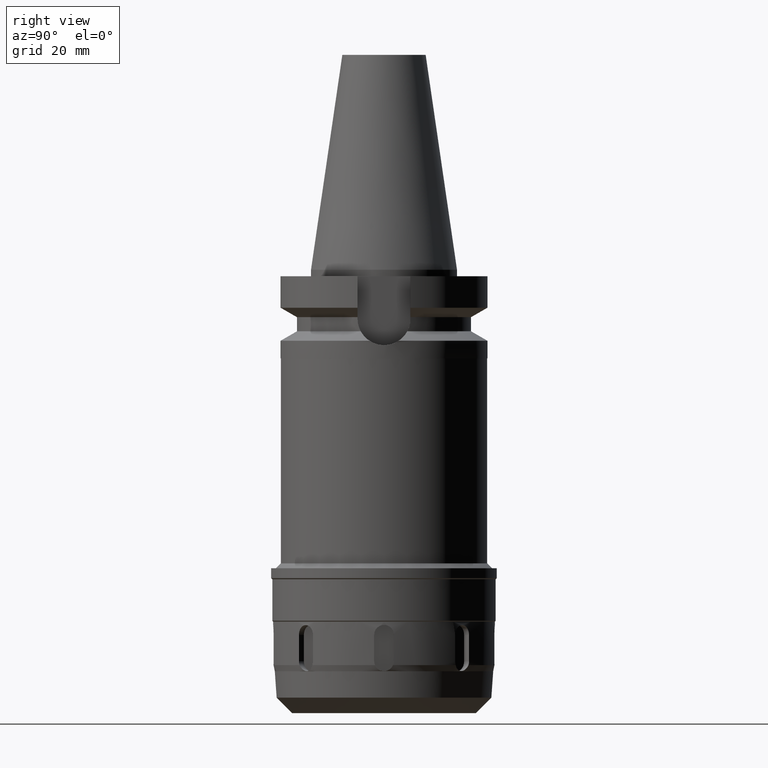
[diagram: clean part render]
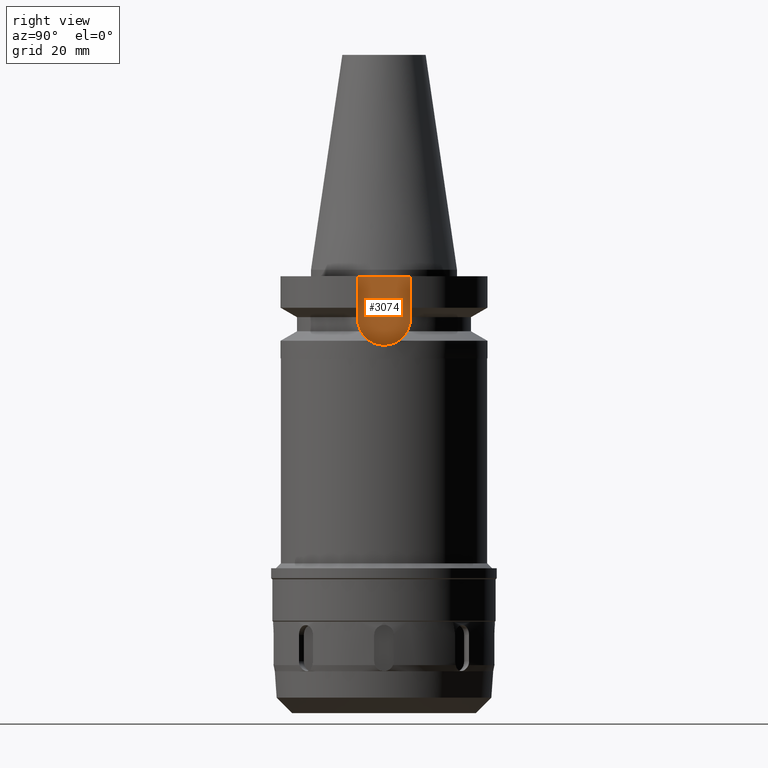
[diagram: same view with one face highlighted and labeled with its STEP entity id]
A machine part, right view. The second image highlights one B-rep face of the part: STEP entity #3074.
In plain terms, the highlighted planar face has unit normal (1, 0, 0).
Its self-contained STEP definition (entity closure, byte-faithful):
#124=DIRECTION('',(0.E0,-1.E0,0.E0));
#125=VECTOR('',#124,1.61E1);
#126=CARTESIAN_POINT('',(2.25E1,8.05E0,-2.E0));
#127=LINE('',#126,#125);
#307=DIRECTION('',(0.E0,0.E0,-1.E0));
#308=VECTOR('',#307,1.295E1);
#309=CARTESIAN_POINT('',(2.25E1,8.05E0,-2.E0));
#310=LINE('',#309,#308);
#314=CARTESIAN_POINT('',(2.25E1,0.E0,-1.495E1));
#315=DIRECTION('',(-1.E0,0.E0,0.E0));
#316=DIRECTION('',(0.E0,1.E0,0.E0));
#317=AXIS2_PLACEMENT_3D('',#314,#315,#316);
#322=CARTESIAN_POINT('',(2.25E1,0.E0,-1.495E1));
#323=DIRECTION('',(-1.E0,0.E0,0.E0));
#324=DIRECTION('',(0.E0,0.E0,-1.E0));
#325=AXIS2_PLACEMENT_3D('',#322,#323,#324);
#330=DIRECTION('',(0.E0,0.E0,1.E0));
#331=VECTOR('',#330,1.295E1);
#332=CARTESIAN_POINT('',(2.25E1,-8.05E0,-1.495E1));
#333=LINE('',#332,#331);
#2705=CARTESIAN_POINT('',(2.25E1,-8.05E0,-1.495E1));
#2706=VERTEX_POINT('',#2705);
#2707=CARTESIAN_POINT('',(2.25E1,0.E0,-2.3E1));
#2708=VERTEX_POINT('',#2707);
#2709=CARTESIAN_POINT('',(2.25E1,8.05E0,-1.495E1));
#2710=VERTEX_POINT('',#2709);
#2757=CARTESIAN_POINT('',(2.25E1,8.05E0,-2.E0));
#2758=VERTEX_POINT('',#2757);
#2759=CARTESIAN_POINT('',(2.25E1,-8.05E0,-2.E0));
#2760=VERTEX_POINT('',#2759);
#3059=CARTESIAN_POINT('',(2.25E1,0.E0,0.E0));
#3060=DIRECTION('',(1.E0,0.E0,0.E0));
#3061=DIRECTION('',(0.E0,0.E0,-1.E0));
#3062=AXIS2_PLACEMENT_3D('',#3059,#3060,#3061);
#3063=PLANE('',#3062);
#3064=ORIENTED_EDGE('',*,*,#2936,.F.);
#3066=ORIENTED_EDGE('',*,*,#3065,.T.);
#3068=ORIENTED_EDGE('',*,*,#3067,.T.);
#3070=ORIENTED_EDGE('',*,*,#3069,.T.);
#3071=ORIENTED_EDGE('',*,*,#3052,.T.);
#3072=EDGE_LOOP('',(#3064,#3066,#3068,#3070,#3071));
#3073=FACE_OUTER_BOUND('',#3072,.F.);
#318=CIRCLE('',#317,8.05E0);
#326=CIRCLE('',#325,8.05E0);
#2936=EDGE_CURVE('',#2758,#2760,#127,.T.);
#3052=EDGE_CURVE('',#2706,#2760,#333,.T.);
#3065=EDGE_CURVE('',#2758,#2710,#310,.T.);
#3067=EDGE_CURVE('',#2710,#2708,#318,.T.);
#3069=EDGE_CURVE('',#2708,#2706,#326,.T.);
#3074=ADVANCED_FACE('',(#3073),#3063,.T.);